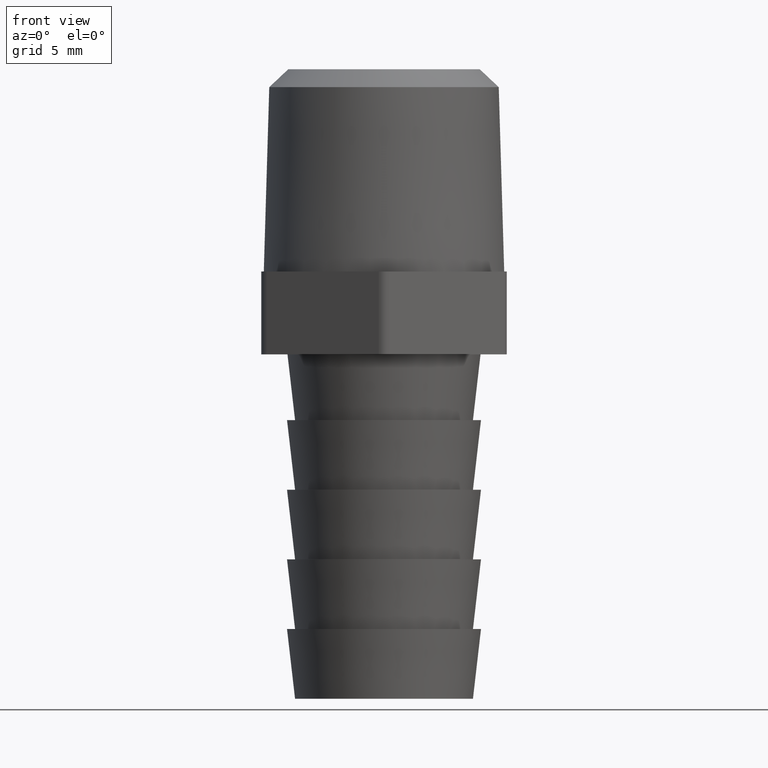
[diagram: clean part render]
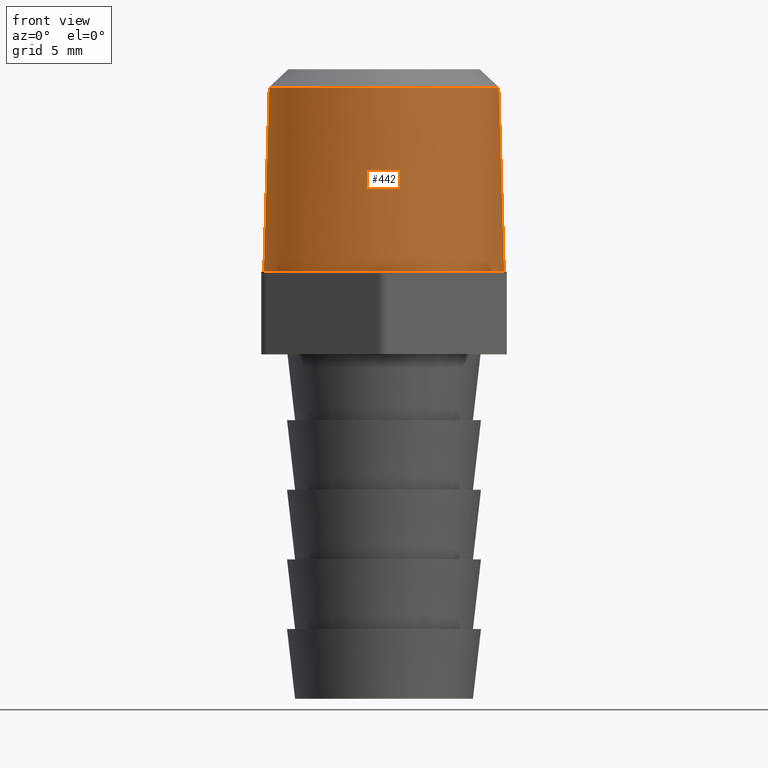
[diagram: same view with one face highlighted and labeled with its STEP entity id]
A machine part, front view. The second image highlights one B-rep face of the part: STEP entity #442.
In plain terms, the highlighted conical surface has half-angle 1.7 deg.
Its self-contained STEP definition (entity closure, byte-faithful):
#48 = VERTEX_POINT ( 'NONE', #1170 ) ;
#52 = CARTESIAN_POINT ( 'NONE',  ( 0.3365000000000000800, 0.0000000000000000000, 0.1160000000000000100 ) ) ;
#63 = AXIS2_PLACEMENT_3D ( 'NONE', #318, #949, #408 ) ;
#106 = VECTOR ( 'NONE', #1015, 39.37007874015748900 ) ;
#128 = ORIENTED_EDGE ( 'NONE', *, *, #802, .T. ) ;
#140 = DIRECTION ( 'NONE',  ( 1.000000000000000000, 0.0000000000000000000, 0.0000000000000000000 ) ) ;
#211 = CIRCLE ( 'NONE', #944, 0.3211848243676520000 ) ;
#318 = CARTESIAN_POINT ( 'NONE',  ( 0.0000000000000000000, 0.0000000000000000000, 0.1160000000000000100 ) ) ;
#320 = DIRECTION ( 'NONE',  ( -0.0000000000000000000, -0.0000000000000000000, -1.000000000000000000 ) ) ;
#376 = CARTESIAN_POINT ( 'NONE',  ( -0.3365000000000000800, -4.120936479130844900E-017, 0.1160000000000000100 ) ) ;
#385 = CARTESIAN_POINT ( 'NONE',  ( -0.3365000000000000800, -4.120936479130844900E-017, 0.1160000000000000100 ) ) ;
#391 = EDGE_CURVE ( 'NONE', #728, #968, #668, .T. ) ;
#408 = DIRECTION ( 'NONE',  ( 1.000000000000000000, 0.0000000000000000000, 0.0000000000000000000 ) ) ;
#414 = CARTESIAN_POINT ( 'NONE',  ( 0.3365000000000000800, 0.0000000000000000000, 0.1160000000000000100 ) ) ;
#437 = EDGE_CURVE ( 'NONE', #48, #968, #1024, .T. ) ;
#442 = ADVANCED_FACE ( 'NONE', ( #584 ), #518, .T. ) ;
#487 = ORIENTED_EDGE ( 'NONE', *, *, #391, .T. ) ;
#518 = CONICAL_SURFACE ( 'NONE', #871, 0.3365000000000000800, 0.02967059728390366800 ) ;
#520 = DIRECTION ( 'NONE',  ( -0.0000000000000000000, -0.0000000000000000000, -1.000000000000000000 ) ) ;
#584 = FACE_OUTER_BOUND ( 'NONE', #1118, .T. ) ;
#614 = VERTEX_POINT ( 'NONE', #896 ) ;
#668 = CIRCLE ( 'NONE', #63, 0.3365000000000000800 ) ;
#690 = DIRECTION ( 'NONE',  ( 0.02966624408511081600, 0.0000000000000000000, -0.9995598601193839100 ) ) ;
#728 = VERTEX_POINT ( 'NONE', #376 ) ;
#796 = LINE ( 'NONE', #385, #106 ) ;
#802 = EDGE_CURVE ( 'NONE', #614, #728, #796, .T. ) ;
#844 = ORIENTED_EDGE ( 'NONE', *, *, #437, .F. ) ;
#865 = CARTESIAN_POINT ( 'NONE',  ( 0.0000000000000000000, 0.0000000000000000000, 0.1160000000000000100 ) ) ;
#871 = AXIS2_PLACEMENT_3D ( 'NONE', #865, #320, #140 ) ;
#896 = CARTESIAN_POINT ( 'NONE',  ( -0.3211848243676520000, -4.027158075048171700E-017, 0.6320220069940306600 ) ) ;
#944 = AXIS2_PLACEMENT_3D ( 'NONE', #1064, #520, #1154 ) ;
#949 = DIRECTION ( 'NONE',  ( 0.0000000000000000000, 0.0000000000000000000, 1.000000000000000000 ) ) ;
#968 = VERTEX_POINT ( 'NONE', #414 ) ;
#1015 = DIRECTION ( 'NONE',  ( -0.02966624408511081600, -3.633067086155506400E-018, -0.9995598601193839100 ) ) ;
#1024 = LINE ( 'NONE', #52, #1052 ) ;
#1052 = VECTOR ( 'NONE', #690, 39.37007874015748900 ) ;
#1058 = ORIENTED_EDGE ( 'NONE', *, *, #1104, .T. ) ;
#1064 = CARTESIAN_POINT ( 'NONE',  ( 0.0000000000000000000, 0.0000000000000000000, 0.6320220069940306600 ) ) ;
#1104 = EDGE_CURVE ( 'NONE', #48, #614, #211, .T. ) ;
#1118 = EDGE_LOOP ( 'NONE', ( #1058, #128, #487, #844 ) ) ;
#1154 = DIRECTION ( 'NONE',  ( -1.000000000000000000, 0.0000000000000000000, 0.0000000000000000000 ) ) ;
#1170 = CARTESIAN_POINT ( 'NONE',  ( 0.3211848243676520000, 0.0000000000000000000, 0.6320220069940306600 ) ) ;